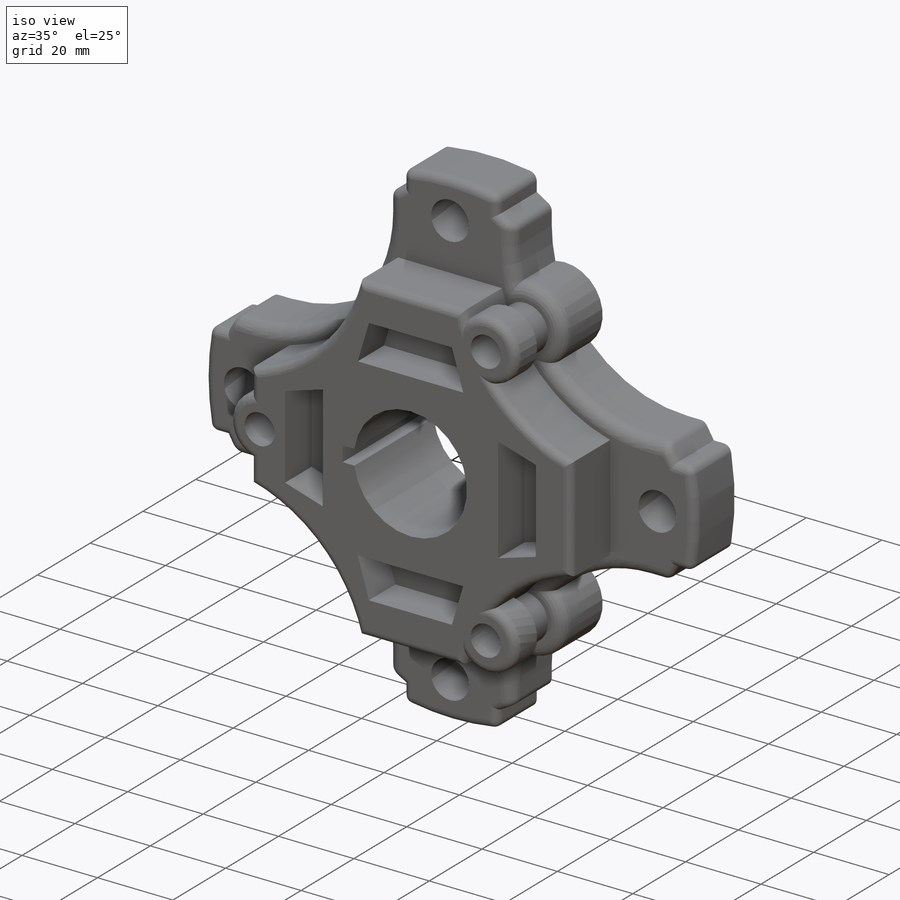
[diagram: iso view]
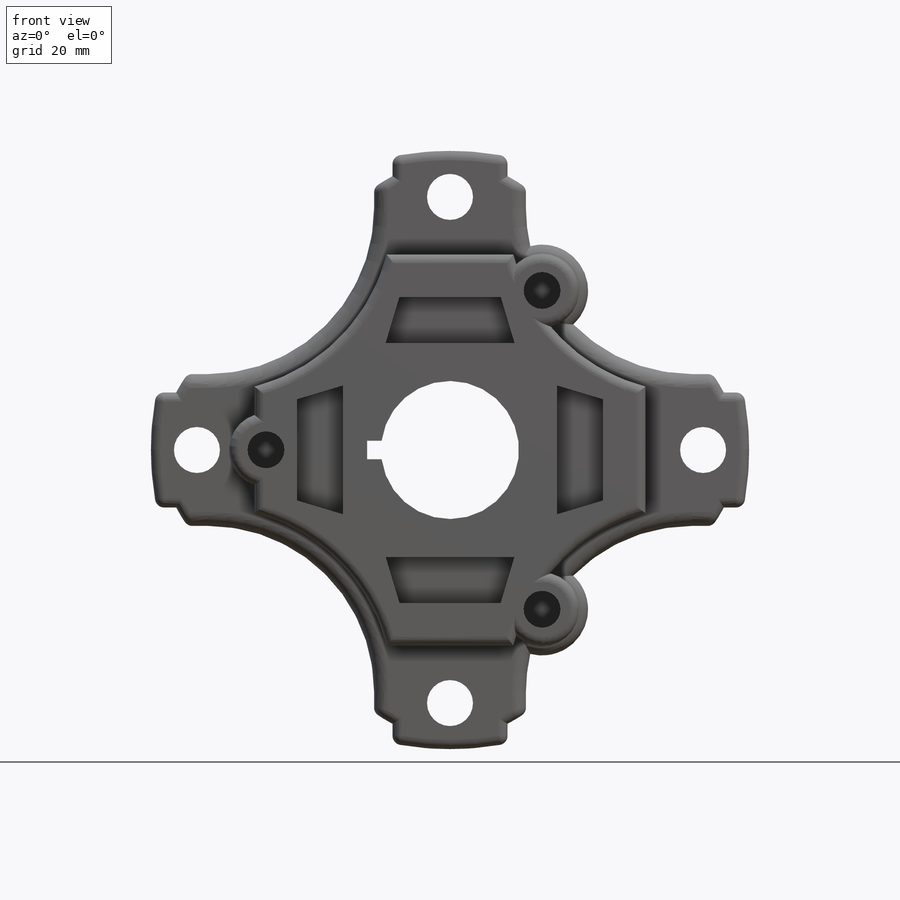
[diagram: front view]
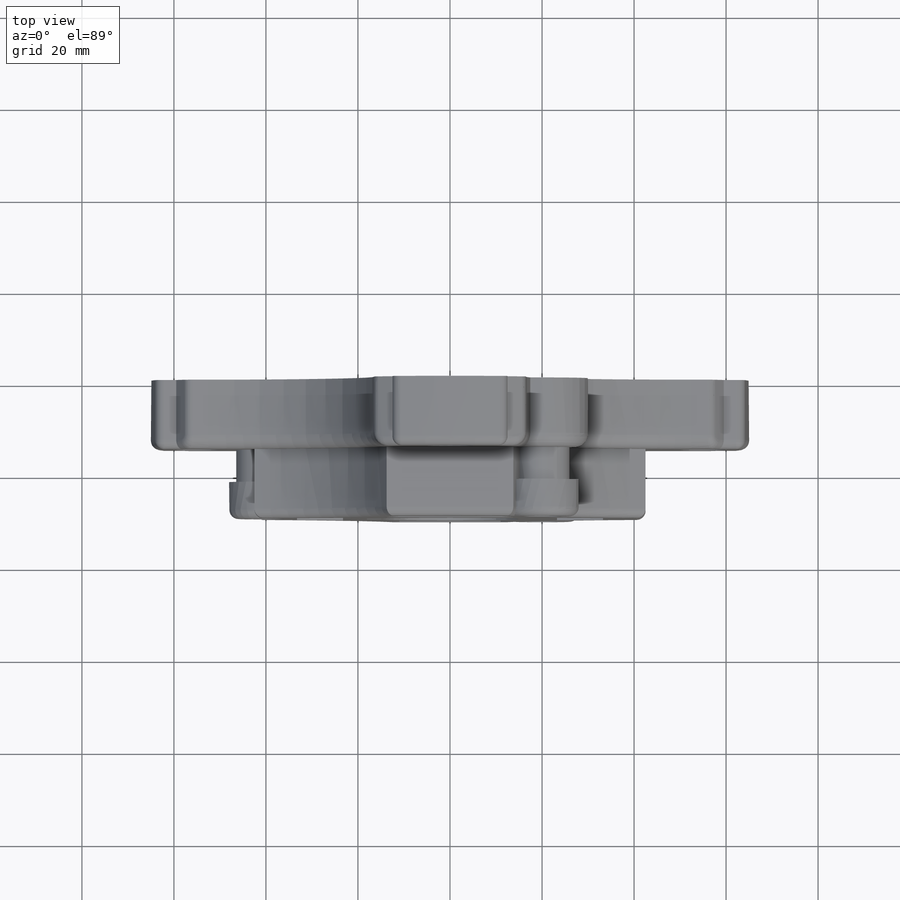
[diagram: top view]
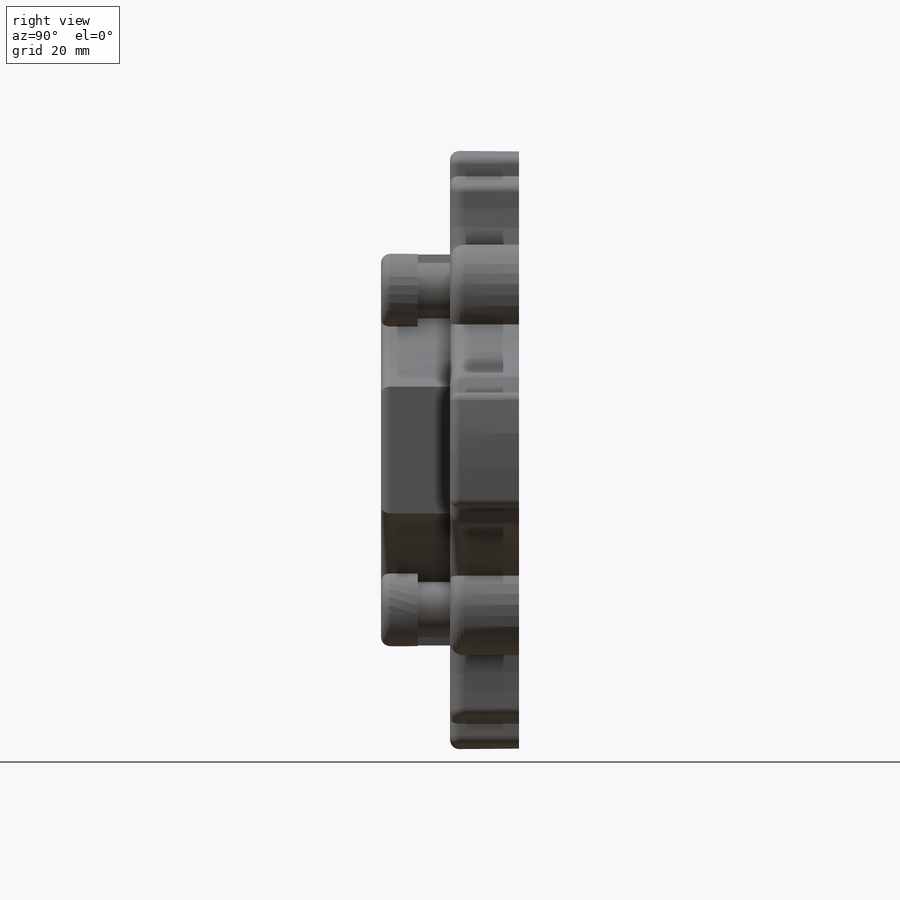
[diagram: right view]
SOLIDWORKS PART (.sldprt)
format: sldprt  version: not decoded by parser v0  size: 1,306,624 bytes
history: native  units: mm
features: sketch x39, cut_extrude x21, extrude x10, plane x4, hole x3, cut_revolve x2, fillet x2, material x1 (+13 scaffold rows collapsed)
feature tree (95):
  scaffold x13  (default folders/planes/origin — collapsed)
  material  "Material <not specified>"
  plane  "Plane1"
  sketch  "Sketch1"
  extrude  "Boss-Extrude1"  Depth=15mm
  sketch  "Sketch2"
  extrude  "Boss-Extrude2"  Depth=15mm
  plane  "Plane2"  Offset=30mm
  sketch  "Sketch3"
  extrude  "Boss-Extrude3"  Depth=8mm
  sketch  "Sketch4"
  extrude  "Boss-Extrude4"  Depth=7mm
  sketch  "Sketch5"
  extrude  "Boss-Extrude5"  Depth=8mm
  sketch  "Sketch6"
  extrude  "Boss-Extrude6"  Depth=7mm
  sketch  "Sketch7"
  extrude  "Boss-Extrude7"  Depth=8mm
  sketch  "Sketch8"
  extrude  "Boss-Extrude8"  Depth=7mm
  hole  "Ø8.0 (8) Diameter Hole1"  Diameter=8mm Depth=20mm
  sketch  "Sketch10"
  sketch  "Sketch9"  dims[hole-wizard template sketch: 46 standard entries collapsed; hole parameters kept: c15.Hole Dia.=8.0mm c15.Hole Depth=20.0mm c15.D3=~14.816244mm c15.Drill Angle=180.0deg]
  sketch  "Sketch11"
  extrude  "Boss-Extrude9"  Depth=8mm
  hole  "Ø8.0 (8) Diameter Hole2"  Diameter=8mm Depth=20mm
  sketch  "Sketch13"
  sketch  "Sketch12"  dims[hole-wizard template sketch: 46 standard entries collapsed; hole parameters kept: c15.Hole Dia.=8.0mm c15.Hole Depth=20.0mm c15.D3=~14.816244mm c15.Drill Angle=180.0deg]
  sketch  "Sketch14"
  extrude  "Boss-Extrude10"  Depth=8mm
  sketch  "Sketch15"
  cut_extrude  "Cut-Extrude1"  Depth=1.3mm
  sketch  "Sketch16"
  cut_extrude  "Cut-Extrude2"  Depth=1.3mm
  sketch  "Sketch17"
  cut_extrude  "Cut-Extrude3"  Depth=1.3mm
  sketch  "Sketch18"
  cut_extrude  "Cut-Extrude4"  Depth=1.2mm
  sketch  "Sketch19"
  cut_extrude  "Cut-Extrude5"  Depth=1.3mm
  sketch  "Sketch20"
  cut_extrude  "Cut-Extrude6"  Depth=1.2mm
  sketch  "Sketch21"
  cut_extrude  "Cut-Extrude7"  Depth=1.3mm
  sketch  "Sketch22"
  cut_extrude  "Cut-Extrude8"  Depth=1.2mm
  sketch  "Sketch23"
  cut_extrude  "Cut-Extrude9"  Depth=1.2mm
  sketch  "Sketch24"
  cut_extrude  "Cut-Extrude10"  Depth=1.2mm
  sketch  "Sketch25"
  cut_extrude  "Cut-Extrude11"  Depth=1.2mm
  sketch  "Sketch26"
  cut_extrude  "Cut-Extrude12"  Depth=1.3mm
  sketch  "Sketch27"
  cut_extrude  "Cut-Extrude13"  Depth=30mm
  sketch  "Sketch28"
  cut_extrude  "Cut-Extrude14"  Depth=10mm
  sketch  "Sketch29"
  cut_extrude  "Cut-Extrude15"  Depth=10mm
  sketch  "Sketch30"
  cut_extrude  "Cut-Extrude16"  Depth=10mm
  sketch  "Sketch31"
  cut_extrude  "Cut-Extrude17"  Depth=10mm
  sketch  "Sketch32"
  cut_extrude  "Cut-Extrude18"  Depth=8mm
  sketch  "Sketch33"
  cut_extrude  "Cut-Extrude19"  Depth=8mm
  sketch  "Sketch34"
  cut_extrude  "Cut-Extrude20"  Depth=8mm
  sketch  "Sketch35"
  cut_extrude  "Cut-Extrude21"  Depth=8mm
  plane  "Plane3"
  sketch  "Sketch36"
  cut_revolve  "Cut-Revolve1"  Angle=360deg
  plane  "Plane4"
  sketch  "Sketch37"
  cut_revolve  "Cut-Revolve2"  Angle=360deg
  hole  "Ø10.0 (10) Diameter Hole1"  Diameter=10mm Depth=30.032688mm
  sketch  "Sketch39"
  sketch  "Sketch38"  dims[hole-wizard template sketch: 60 standard entries collapsed; hole parameters kept: c18.Thru Hole Depth=~30.032688mm]
  fillet  "Fillet1"  Radius=3mm
  fillet  "Fillet2"  Radius=2mm
decode coverage: 41 of 77 modeling features carry decoded parameters
note: ~ marks probable driven/reference dimensions
note: suppression state not decoded; provenance and decode notes live in map.json
